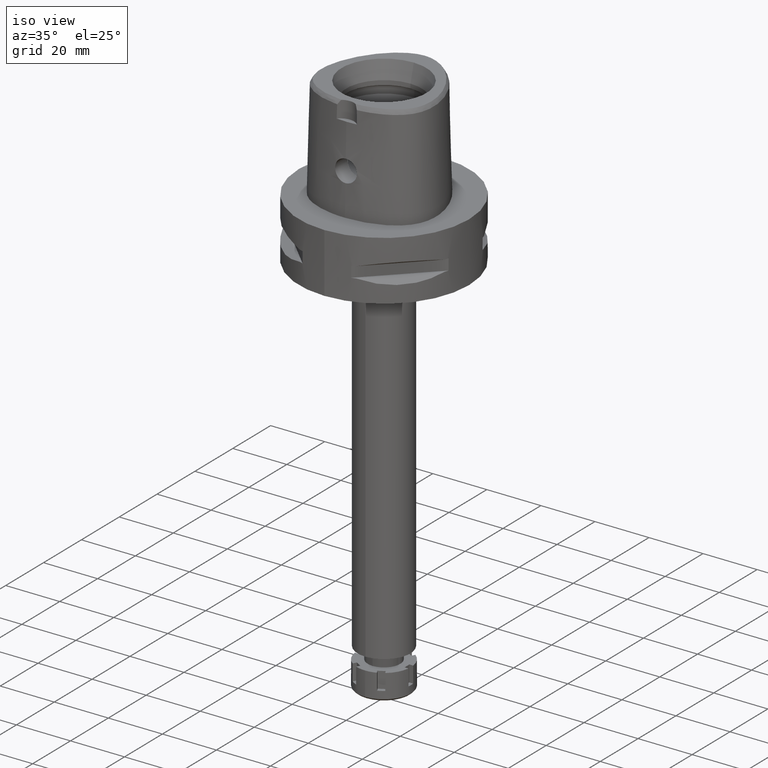
[diagram: clean part render]
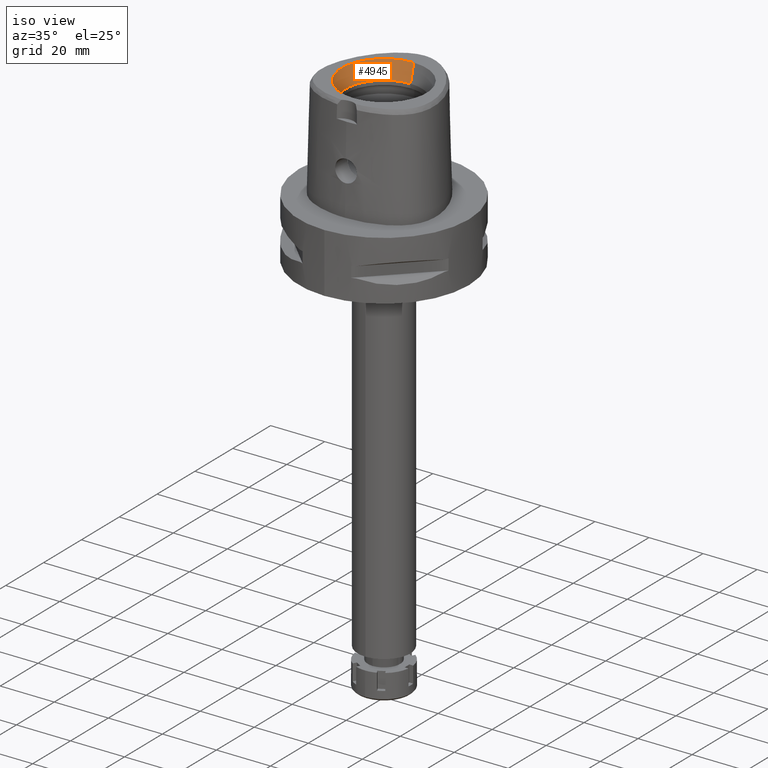
[diagram: same view with one face highlighted and labeled with its STEP entity id]
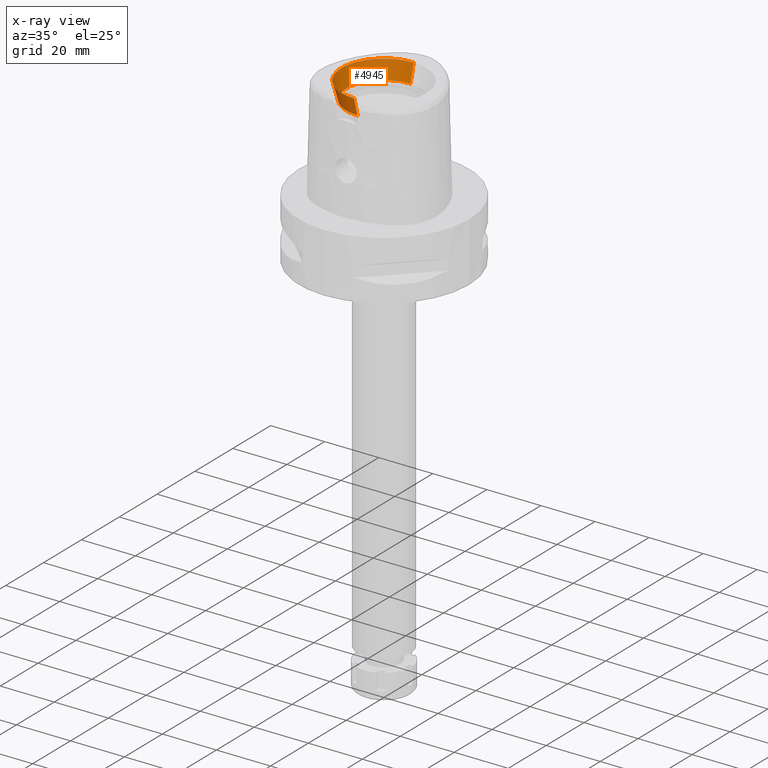
[diagram: x-ray of the same camera — body ghosted, the highlighted face saturated]
A machine part, iso view. The second image highlights one B-rep face of the part: STEP entity #4945.
The next image is the same camera in x-ray: the body ghosted, the highlighted face saturated — about 0% of this face is hidden behind the body in this view.
In plain terms, the highlighted conical surface has half-angle 15 deg.
Its self-contained STEP definition (entity closure, byte-faithful):
#24 = CONICAL_SURFACE ( 'NONE', #1927, 14.85743741577999977, 0.2617993877991000029 ) ;
#68 = DIRECTION ( 'NONE',  ( 0.0000000000000000000, 0.0000000000000000000, 1.000000000000000000 ) ) ;
#374 = CARTESIAN_POINT ( 'NONE',  ( 0.0000000000000000000, 14.00000000000000000, 31.60000000000000142 ) ) ;
#503 = VERTEX_POINT ( 'NONE', #4267 ) ;
#683 = EDGE_CURVE ( 'NONE', #503, #2232, #3561, .T. ) ;
#711 = CARTESIAN_POINT ( 'NONE',  ( 0.0000000000000000000, -14.00000000000000000, 31.60000000000000142 ) ) ;
#802 = CARTESIAN_POINT ( 'NONE',  ( 0.0000000000000000000, 0.0000000000000000000, 34.79999999999999716 ) ) ;
#873 = ORIENTED_EDGE ( 'NONE', *, *, #2240, .T. ) ;
#977 = CARTESIAN_POINT ( 'NONE',  ( 0.0000000000000000000, -15.71487483155999776, 38.00000000000000000 ) ) ;
#1150 = LINE ( 'NONE', #711, #1854 ) ;
#1620 = DIRECTION ( 'NONE',  ( 0.0000000000000000000, 1.000000000000000000, 0.0000000000000000000 ) ) ;
#1654 = VECTOR ( 'NONE', #2998, 1000.000000000000000 ) ;
#1694 = EDGE_CURVE ( 'NONE', #2232, #5181, #1150, .T. ) ;
#1854 = VECTOR ( 'NONE', #2057, 1000.000000000000000 ) ;
#1927 = AXIS2_PLACEMENT_3D ( 'NONE', #802, #4149, #4960 ) ;
#1997 = ORIENTED_EDGE ( 'NONE', *, *, #683, .F. ) ;
#2057 = DIRECTION ( 'NONE',  ( 0.0000000000000000000, -0.2588190451025869088, 0.9659258262890505486 ) ) ;
#2232 = VERTEX_POINT ( 'NONE', #3719 ) ;
#2240 = EDGE_CURVE ( 'NONE', #5426, #5181, #5449, .T. ) ;
#2477 = FACE_OUTER_BOUND ( 'NONE', #3381, .T. ) ;
#2998 = DIRECTION ( 'NONE',  ( 0.0000000000000000000, 0.2588190451025869088, 0.9659258262890505486 ) ) ;
#3381 = EDGE_LOOP ( 'NONE', ( #4120, #1997, #3574, #873 ) ) ;
#3492 = EDGE_CURVE ( 'NONE', #503, #5426, #5043, .T. ) ;
#3555 = AXIS2_PLACEMENT_3D ( 'NONE', #4950, #5404, #1620 ) ;
#3561 = CIRCLE ( 'NONE', #5454, 14.00000000000000000 ) ;
#3574 = ORIENTED_EDGE ( 'NONE', *, *, #3492, .T. ) ;
#3719 = CARTESIAN_POINT ( 'NONE',  ( 0.0000000000000000000, -14.00000000000000000, 31.60000000000000142 ) ) ;
#4064 = CARTESIAN_POINT ( 'NONE',  ( 0.0000000000000000000, 15.71487483155999776, 38.00000000000000000 ) ) ;
#4120 = ORIENTED_EDGE ( 'NONE', *, *, #1694, .F. ) ;
#4149 = DIRECTION ( 'NONE',  ( 0.0000000000000000000, 0.0000000000000000000, 1.000000000000000000 ) ) ;
#4267 = CARTESIAN_POINT ( 'NONE',  ( 0.0000000000000000000, 14.00000000000000000, 31.60000000000000142 ) ) ;
#4945 = ADVANCED_FACE ( 'NONE', ( #2477 ), #24, .F. ) ;
#4950 = CARTESIAN_POINT ( 'NONE',  ( 0.0000000000000000000, 0.0000000000000000000, 38.00000000000000000 ) ) ;
#4960 = DIRECTION ( 'NONE',  ( 0.0000000000000000000, 1.000000000000000000, 0.0000000000000000000 ) ) ;
#5043 = LINE ( 'NONE', #374, #1654 ) ;
#5132 = CARTESIAN_POINT ( 'NONE',  ( 0.0000000000000000000, 0.0000000000000000000, 31.60000000000000142 ) ) ;
#5181 = VERTEX_POINT ( 'NONE', #977 ) ;
#5221 = DIRECTION ( 'NONE',  ( 0.0000000000000000000, 1.000000000000000000, 0.0000000000000000000 ) ) ;
#5404 = DIRECTION ( 'NONE',  ( 0.0000000000000000000, 0.0000000000000000000, 1.000000000000000000 ) ) ;
#5426 = VERTEX_POINT ( 'NONE', #4064 ) ;
#5449 = CIRCLE ( 'NONE', #3555, 15.71487483155999776 ) ;
#5454 = AXIS2_PLACEMENT_3D ( 'NONE', #5132, #68, #5221 ) ;